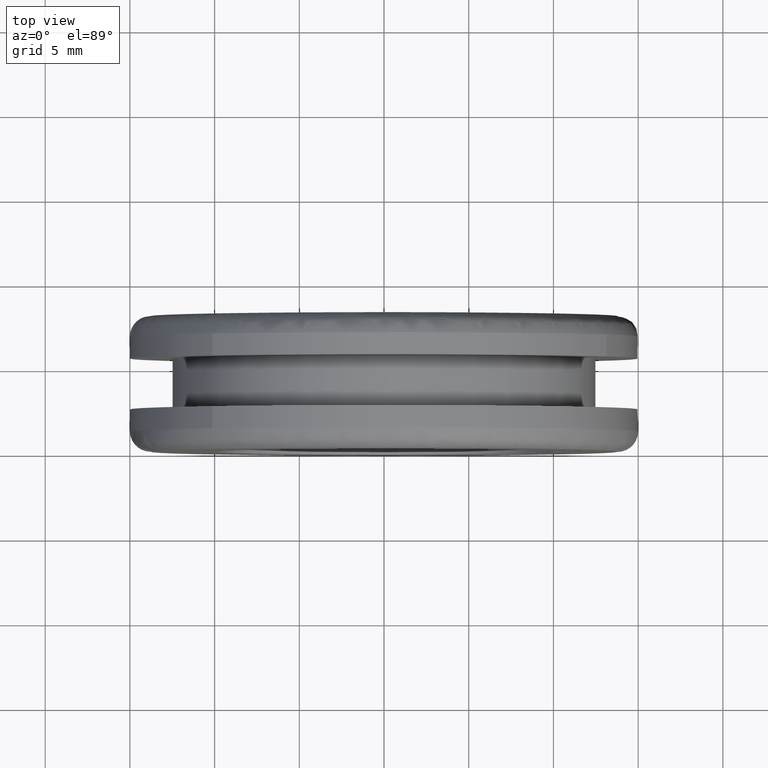
[diagram: clean part render]
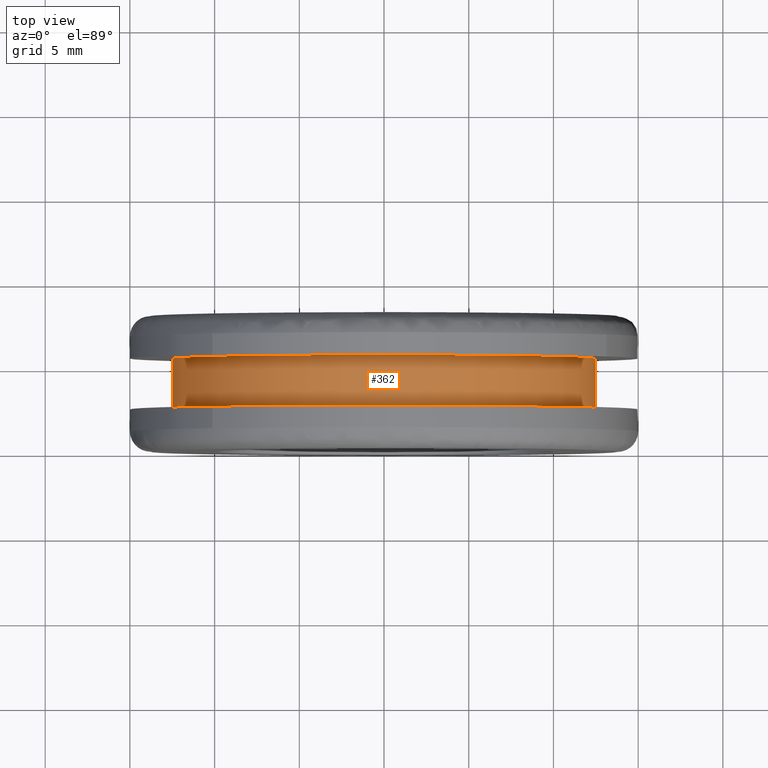
[diagram: same view with one face highlighted and labeled with its STEP entity id]
A machine part, top view. The second image highlights one B-rep face of the part: STEP entity #362.
In plain terms, the highlighted face is a freeform B-spline surface patch.
Its self-contained STEP definition (entity closure, byte-faithful):
#260=CARTESIAN_POINT('',(12.412619079545834,5.574999999999902,-1.475427933209482));
#261=CARTESIAN_POINT('',(12.454845193107571,5.574999999999901,-1.120184107974721));
#262=CARTESIAN_POINT('',(12.476684980273340,5.574999999999901,-0.763106744185713));
#263=CARTESIAN_POINT('',(13.239791724459048,5.574999999999902,11.713578236087622));
#264=CARTESIAN_POINT('',(0.763106744185712,5.574999999999901,12.476684980273340));
#265=CARTESIAN_POINT('',(-11.713578236087622,5.574999999999902,13.239791724459048));
#266=CARTESIAN_POINT('',(-12.476684980273340,5.574999999999901,0.763106744185712));
#267=CARTESIAN_POINT('',(12.412619079545834,2.423124999999901,-1.475427933209482));
#268=CARTESIAN_POINT('',(12.454845193107571,2.423124999999901,-1.120184107974721));
#269=CARTESIAN_POINT('',(12.476684980273340,2.423124999999900,-0.763106744185713));
#270=CARTESIAN_POINT('',(13.239791724459048,2.423124999999901,11.713578236087622));
#271=CARTESIAN_POINT('',(0.763106744185712,2.423124999999900,12.476684980273340));
#272=CARTESIAN_POINT('',(-11.713578236087622,2.423124999999901,13.239791724459048));
#273=CARTESIAN_POINT('',(-12.476684980273340,2.423124999999900,0.763106744185712));
#281=(BOUNDED_SURFACE()B_SPLINE_SURFACE(2,1,((#260,#267),(#261,#268),(#262,#269),(#263,#270),(#264,#271),(#265,#272),(#266,#273)),.UNSPECIFIED.,.F.,.F.,.U.)B_SPLINE_SURFACE_WITH_KNOTS((3,2,2,3),(2,2),(0.0,0.828427124746191,21.539105243400940,42.249783362055702),(0.0,3.151875000000001),.UNSPECIFIED.)GEOMETRIC_REPRESENTATION_ITEM()RATIONAL_B_SPLINE_SURFACE(((0.977505800795127,0.977505800795127),(0.988284271247462,0.988284271247462),(1.0,1.0),(0.707106781186548,0.707106781186548),(1.0,1.0),(0.707106781186548,0.707106781186548),(1.0,1.0)))REPRESENTATION_ITEM('')SURFACE());
#282=CARTESIAN_POINT('',(12.412619350192990,2.499999999999915,-1.475425656280013));
#283=VERTEX_POINT('',#282);
#284=CARTESIAN_POINT('',(0.0,2.499999999999901,12.500000000000000));
#285=VERTEX_POINT('',#284);
#286=CARTESIAN_POINT('',(12.412619350192989,2.499999999999914,-1.475425656280013));
#287=CARTESIAN_POINT('',(12.499999999999996,2.499999999999901,-0.740300345148469));
#288=CARTESIAN_POINT('',(12.500000000000000,2.499999999999901,-1.928755E-016));
#289=CARTESIAN_POINT('',(12.499999999999998,2.499999999999900,12.499999999999998));
#290=CARTESIAN_POINT('',(0.0,2.499999999999901,12.500000000000000));
#298=(BOUNDED_CURVE()B_SPLINE_CURVE(2,(#286,#287,#288,#289,#290),.UNSPECIFIED.,.F.,.U.)B_SPLINE_CURVE_WITH_KNOTS((3,2,3),(0.229562504517037,0.250000000000000,0.500000000000000),.UNSPECIFIED.)CURVE()GEOMETRIC_REPRESENTATION_ITEM()RATIONAL_B_SPLINE_CURVE((0.956026814951894,0.976055984654039,1.0,0.707106781186547,1.0))REPRESENTATION_ITEM(''));
#299=EDGE_CURVE('',#283,#285,#298,.T.);
#300=ORIENTED_EDGE('',*,*,#299,.F.);
#301=CARTESIAN_POINT('',(12.412619346857131,5.499999999999899,-1.475425684344294));
#302=VERTEX_POINT('',#301);
#303=CARTESIAN_POINT('',(12.412619346857131,5.499999999999899,-1.475425684344294));
#304=CARTESIAN_POINT('',(12.412619350192990,2.499999999999915,-1.475425656280013));
#305=QUASI_UNIFORM_CURVE('',1,(#303,#304),.UNSPECIFIED.,.F.,.U.);
#306=EDGE_CURVE('',#302,#283,#305,.T.);
#307=ORIENTED_EDGE('',*,*,#306,.F.);
#308=CARTESIAN_POINT('',(0.0,5.499999999999900,12.500000000000000));
#309=VERTEX_POINT('',#308);
#310=CARTESIAN_POINT('',(12.412619346857136,5.499999999999899,-1.475425684344294));
#311=CARTESIAN_POINT('',(12.500000000000000,5.499999999999900,-0.740300359328956));
#312=CARTESIAN_POINT('',(12.500000000000000,5.499999999999900,-1.928755E-016));
#313=CARTESIAN_POINT('',(12.499999999999998,5.499999999999900,12.499999999999998));
#314=CARTESIAN_POINT('',(0.0,5.499999999999900,12.500000000000000));
#322=(BOUNDED_CURVE()B_SPLINE_CURVE(2,(#310,#311,#312,#313,#314),.UNSPECIFIED.,.F.,.U.)B_SPLINE_CURVE_WITH_KNOTS((3,2,3),(0.229562504134930,0.250000000000000,0.500000000000000),.UNSPECIFIED.)CURVE()GEOMETRIC_REPRESENTATION_ITEM()RATIONAL_B_SPLINE_CURVE((0.956026814202948,0.976055984206372,1.0,0.707106781186547,1.0))REPRESENTATION_ITEM(''));
#323=EDGE_CURVE('',#302,#309,#322,.T.);
#324=ORIENTED_EDGE('',*,*,#323,.T.);
#325=CARTESIAN_POINT('',(-12.476685738722409,5.499999999999899,0.763094343450776));
#326=VERTEX_POINT('',#325);
#327=CARTESIAN_POINT('',(0.0,5.499999999999900,12.500000000000000));
#328=CARTESIAN_POINT('',(-11.758837545411410,5.499999999999901,12.500000000000000));
#329=CARTESIAN_POINT('',(-12.476685738722406,5.499999999999900,0.763094343450776));
#337=(BOUNDED_CURVE()B_SPLINE_CURVE(2,(#327,#328,#329),.UNSPECIFIED.,.F.,.U.)B_SPLINE_CURVE_WITH_KNOTS((3,3),(0.500000000000000,0.739333133738426),.UNSPECIFIED.)CURVE()GEOMETRIC_REPRESENTATION_ITEM()RATIONAL_B_SPLINE_CURVE((1.0,0.719603792362568,0.976072409223032))REPRESENTATION_ITEM(''));
#338=EDGE_CURVE('',#309,#326,#337,.T.);
#339=ORIENTED_EDGE('',*,*,#338,.T.);
#340=CARTESIAN_POINT('',(-12.476685748195219,2.499999999999971,0.763094188566475));
#341=VERTEX_POINT('',#340);
#342=CARTESIAN_POINT('',(-12.476685738722409,5.499999999999899,0.763094343450776));
#343=CARTESIAN_POINT('',(-12.476685748195219,2.499999999999971,0.763094188566475));
#344=QUASI_UNIFORM_CURVE('',1,(#342,#343),.UNSPECIFIED.,.F.,.U.);
#345=EDGE_CURVE('',#326,#341,#344,.T.);
#346=ORIENTED_EDGE('',*,*,#345,.T.);
#347=CARTESIAN_POINT('',(0.0,2.499999999999901,12.500000000000000));
#348=CARTESIAN_POINT('',(-11.758837691657179,2.499999999999900,12.499999999999998));
#349=CARTESIAN_POINT('',(-12.476685748195219,2.499999999999971,0.763094188566475));
#357=(BOUNDED_CURVE()B_SPLINE_CURVE(2,(#347,#348,#349),.UNSPECIFIED.,.F.,.U.)B_SPLINE_CURVE_WITH_KNOTS((3,3),(0.500000000000000,0.739333135880405),.UNSPECIFIED.)CURVE()GEOMETRIC_REPRESENTATION_ITEM()RATIONAL_B_SPLINE_CURVE((1.0,0.719603789853083,0.976072413813707))REPRESENTATION_ITEM(''));
#358=EDGE_CURVE('',#285,#341,#357,.T.);
#359=ORIENTED_EDGE('',*,*,#358,.F.);
#360=EDGE_LOOP('',(#300,#307,#324,#339,#346,#359));
#361=FACE_OUTER_BOUND('',#360,.T.);
#362=ADVANCED_FACE('',(#361),#281,.T.);